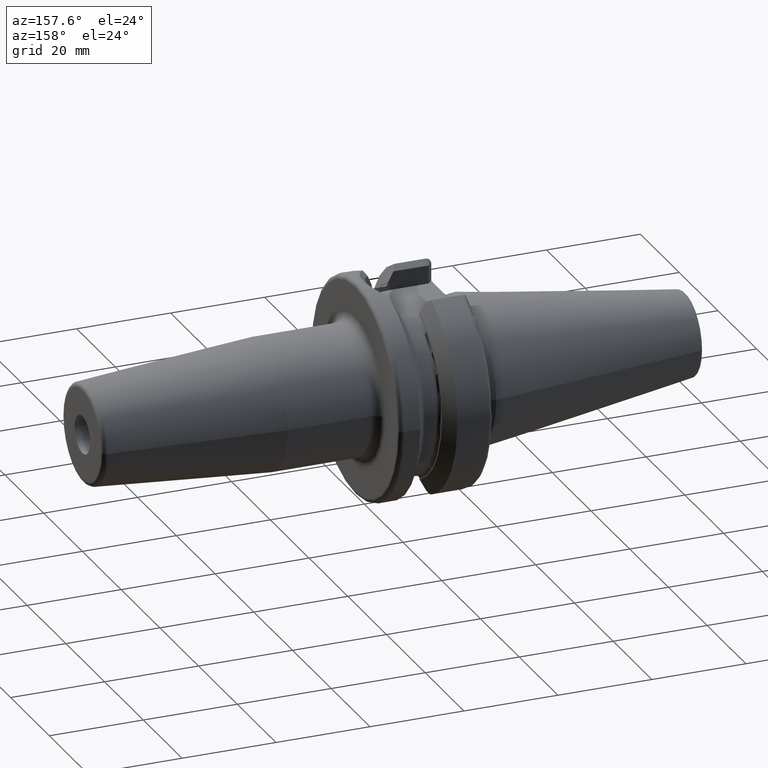
[diagram: clean part render]
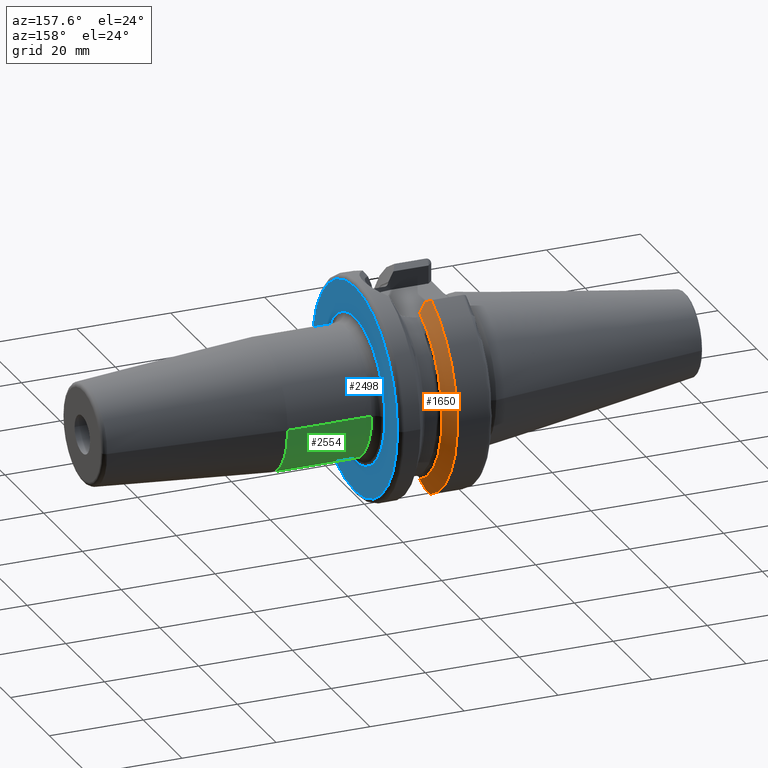
[diagram: same view with three faces highlighted in distinct colors, each labeled with its STEP entity id]
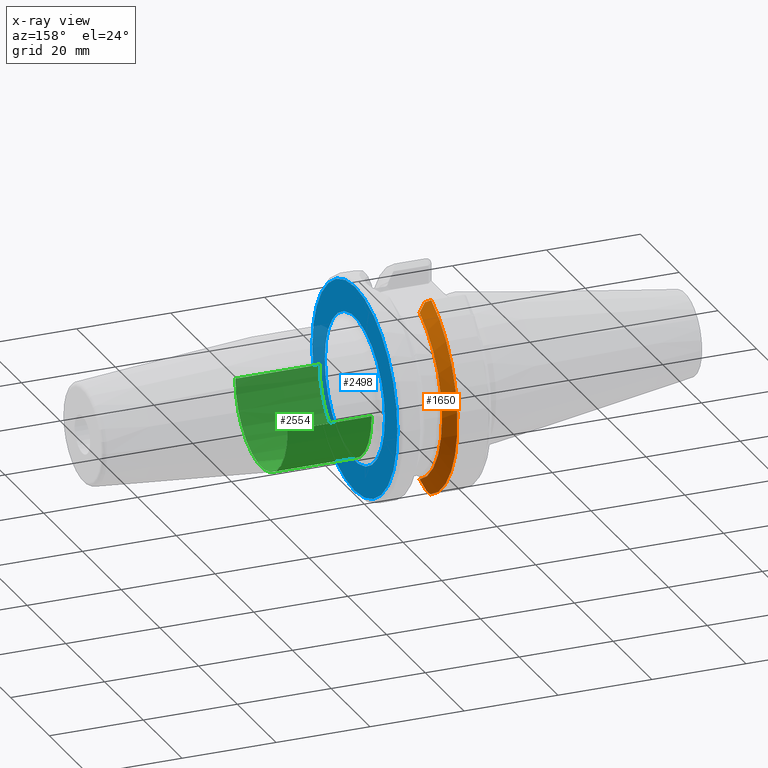
[diagram: x-ray of the same camera — body ghosted, the three highlighted faces saturated]
A machine part, auxiliary view with three faces highlighted in distinct colors.
The next image is the same camera in x-ray (body ghosted, the three faces saturated) — at least one of them is partly hidden behind the body in this view.
Their STEP definitions:

[orange] entity #1650 — the highlighted conical surface has half-angle 60 deg.
#151=CARTESIAN_POINT('',(1.017720370416E1,8.095E0,-2.054091629899E1));
#152=CARTESIAN_POINT('',(1.034592736338E1,8.095E0,-2.022680358126E1));
#153=CARTESIAN_POINT('',(1.067763645400E1,8.095E0,-1.960732394870E1));
#154=CARTESIAN_POINT('',(1.099781107595E1,8.095E0,-1.900530454573E1));
#155=CARTESIAN_POINT('',(1.1155E1,8.095E0,-1.870865212813E1));
#180=CARTESIAN_POINT('',(1.15625E1,0.E0,0.E0));
#181=DIRECTION('',(1.E0,0.E0,0.E0));
#182=DIRECTION('',(0.E0,4.108295537893E-1,-9.117121682490E-1));
#183=AXIS2_PLACEMENT_3D('',#180,#181,#182);
#217=CARTESIAN_POINT('',(9.650924158743E0,0.E0,0.E0));
#218=DIRECTION('',(1.E0,0.E0,0.E0));
#219=DIRECTION('',(0.E0,3.921232146517E-1,-9.199127048428E-1));
#220=AXIS2_PLACEMENT_3D('',#217,#218,#219);
#355=CARTESIAN_POINT('',(1.1155E1,8.095E0,-1.870865212813E1));
#356=CARTESIAN_POINT('',(1.122320683725E1,8.095E0,-1.857992980697E1));
#357=CARTESIAN_POINT('',(1.135933197530E1,8.093276167010E0,-1.832335661175E1));
#358=CARTESIAN_POINT('',(1.149487499855E1,8.088145321664E0,-1.806856911534E1));
#359=CARTESIAN_POINT('',(1.15625E1,8.084736776791E0,-1.794163255419E1));
#486=CARTESIAN_POINT('',(1.15625E1,8.084736776791E0,1.794163255419E1));
#487=CARTESIAN_POINT('',(1.149487499855E1,8.088145321664E0,1.806856911534E1));
#488=CARTESIAN_POINT('',(1.135933197530E1,8.093276167010E0,1.832335661175E1));
#489=CARTESIAN_POINT('',(1.122320683725E1,8.095E0,1.857992980697E1));
#490=CARTESIAN_POINT('',(1.1155E1,8.095E0,1.870865212813E1));
#628=CARTESIAN_POINT('',(1.017720370416E1,8.095E0,-2.054091629899E1));
#629=CARTESIAN_POINT('',(1.009208951352E1,8.245211924620E0,-2.064017608894E1));
#630=CARTESIAN_POINT('',(9.919262419200E0,8.548742773241E0,-2.084074876887E1));
#631=CARTESIAN_POINT('',(9.741236534800E0,8.858487080959E0,-2.104542729224E1));
#632=CARTESIAN_POINT('',(9.650924158743E0,9.014912704843E0,-2.114879308434E1));
#638=CARTESIAN_POINT('',(9.650924158743E0,9.508597089586E0,2.093147585308E1));
#639=CARTESIAN_POINT('',(9.791123521794E0,9.265764669593E0,2.077507399605E1));
#640=CARTESIAN_POINT('',(1.006550207100E1,8.787334100376E0,2.046692968203E1));
#641=CARTESIAN_POINT('',(1.032782868581E1,8.323367334132E0,2.016810111606E1));
#642=CARTESIAN_POINT('',(1.045597922678E1,8.095E0,2.002101583337E1));
#648=CARTESIAN_POINT('',(1.1155E1,8.095E0,1.870865212813E1));
#649=CARTESIAN_POINT('',(1.104157295667E1,8.095E0,1.892271559875E1));
#650=CARTESIAN_POINT('',(1.081163556423E1,8.095E0,1.935550271354E1));
#651=CARTESIAN_POINT('',(1.057555222538E1,8.095E0,1.979762107014E1));
#652=CARTESIAN_POINT('',(1.045597922678E1,8.095E0,2.002101583337E1));
#1204=CARTESIAN_POINT('',(1.15625E1,8.084736776791E0,-1.794163255419E1));
#1205=CARTESIAN_POINT('',(1.15625E1,8.084736776791E0,1.794163255419E1));
#1206=VERTEX_POINT('',#1204);
#1207=VERTEX_POINT('',#1205);
#1310=VERTEX_POINT('',#648);
#1311=VERTEX_POINT('',#652);
#1316=VERTEX_POINT('',#151);
#1317=VERTEX_POINT('',#155);
#1326=CARTESIAN_POINT('',(9.650924158743E0,9.014912704843E0,-2.114879308434E1));
#1327=CARTESIAN_POINT('',(9.650924158743E0,9.508597089586E0,2.093147585308E1));
#1328=VERTEX_POINT('',#1326);
#1329=VERTEX_POINT('',#1327);
#1628=CARTESIAN_POINT('',(1.060671207937E1,0.E0,0.E0));
#1629=DIRECTION('',(-1.E0,0.E0,0.E0));
#1630=DIRECTION('',(0.E0,1.E0,0.E0));
#1631=AXIS2_PLACEMENT_3D('',#1628,#1629,#1630);
#1632=CONICAL_SURFACE('',#1631,2.133452676021E1,6.E1);
#1634=ORIENTED_EDGE('',*,*,#1633,.F.);
#1636=ORIENTED_EDGE('',*,*,#1635,.F.);
#1637=ORIENTED_EDGE('',*,*,#1614,.T.);
#1639=ORIENTED_EDGE('',*,*,#1638,.T.);
#1641=ORIENTED_EDGE('',*,*,#1640,.T.);
#1643=ORIENTED_EDGE('',*,*,#1642,.T.);
#1645=ORIENTED_EDGE('',*,*,#1644,.T.);
#1647=ORIENTED_EDGE('',*,*,#1646,.F.);
#1648=EDGE_LOOP('',(#1634,#1636,#1637,#1639,#1641,#1643,#1645,#1647));
#1649=FACE_OUTER_BOUND('',#1648,.F.);
#1650=ADVANCED_FACE('',(#1649),#1632,.T.);
#156=B_SPLINE_CURVE_WITH_KNOTS('',3,(#151,#152,#153,#154,#155),.UNSPECIFIED.,
.F.,.F.,(4,1,4),(0.E0,5.E-1,1.E0),.UNSPECIFIED.);
#184=CIRCLE('',#183,1.967905352042E1);
#221=CIRCLE('',#220,2.299E1);
#360=B_SPLINE_CURVE_WITH_KNOTS('',3,(#355,#356,#357,#358,#359),.UNSPECIFIED.,
.F.,.F.,(4,1,4),(0.E0,5.E-1,1.E0),.UNSPECIFIED.);
#491=B_SPLINE_CURVE_WITH_KNOTS('',3,(#486,#487,#488,#489,#490),.UNSPECIFIED.,
.F.,.F.,(4,1,4),(0.E0,5.E-1,1.E0),.UNSPECIFIED.);
#633=B_SPLINE_CURVE_WITH_KNOTS('',3,(#628,#629,#630,#631,#632),.UNSPECIFIED.,
.F.,.F.,(4,1,4),(0.E0,5.E-1,1.E0),.UNSPECIFIED.);
#643=B_SPLINE_CURVE_WITH_KNOTS('',3,(#638,#639,#640,#641,#642),.UNSPECIFIED.,
.F.,.F.,(4,1,4),(0.E0,5.E-1,1.E0),.UNSPECIFIED.);
#653=B_SPLINE_CURVE_WITH_KNOTS('',3,(#648,#649,#650,#651,#652),.UNSPECIFIED.,
.F.,.F.,(4,1,4),(0.E0,5.E-1,1.E0),.UNSPECIFIED.);
#1614=EDGE_CURVE('',#1316,#1317,#156,.T.);
#1633=EDGE_CURVE('',#1328,#1329,#221,.T.);
#1635=EDGE_CURVE('',#1316,#1328,#633,.T.);
#1638=EDGE_CURVE('',#1317,#1206,#360,.T.);
#1640=EDGE_CURVE('',#1206,#1207,#184,.T.);
#1642=EDGE_CURVE('',#1207,#1310,#491,.T.);
#1644=EDGE_CURVE('',#1310,#1311,#653,.T.);
#1646=EDGE_CURVE('',#1329,#1311,#643,.T.);

[blue] entity #2498 — the highlighted planar face has unit normal (1, 0, 0).
#802=CARTESIAN_POINT('',(2.2E1,0.E0,0.E0));
#803=DIRECTION('',(1.E0,0.E0,0.E0));
#804=DIRECTION('',(0.E0,1.E0,0.E0));
#805=AXIS2_PLACEMENT_3D('',#802,#803,#804);
#817=CARTESIAN_POINT('',(2.2E1,0.E0,0.E0));
#818=DIRECTION('',(-1.E0,0.E0,0.E0));
#819=DIRECTION('',(0.E0,1.E0,0.E0));
#820=AXIS2_PLACEMENT_3D('',#817,#818,#819);
#822=CARTESIAN_POINT('',(2.2E1,0.E0,0.E0));
#823=DIRECTION('',(1.E0,0.E0,0.E0));
#824=DIRECTION('',(0.E0,-1.E0,0.E0));
#825=AXIS2_PLACEMENT_3D('',#822,#823,#824);
#827=CARTESIAN_POINT('',(2.2E1,0.E0,0.E0));
#828=DIRECTION('',(1.E0,0.E0,0.E0));
#829=DIRECTION('',(0.E0,1.E0,0.E0));
#830=AXIS2_PLACEMENT_3D('',#827,#828,#829);
#1290=CARTESIAN_POINT('',(2.2E1,2.199E1,0.E0));
#1291=VERTEX_POINT('',#1290);
#1292=CARTESIAN_POINT('',(2.2E1,-2.199E1,0.E0));
#1293=VERTEX_POINT('',#1292);
#1387=CARTESIAN_POINT('',(2.2E1,-1.55E1,0.E0));
#1388=CARTESIAN_POINT('',(2.2E1,1.55E1,-1.186856296667E-14));
#1389=VERTEX_POINT('',#1387);
#1390=VERTEX_POINT('',#1388);
#2483=CARTESIAN_POINT('',(2.2E1,0.E0,0.E0));
#2484=DIRECTION('',(1.E0,0.E0,0.E0));
#2485=DIRECTION('',(0.E0,-1.E0,0.E0));
#2486=AXIS2_PLACEMENT_3D('',#2483,#2484,#2485);
#2487=PLANE('',#2486);
#2488=ORIENTED_EDGE('',*,*,#2478,.T.);
#2489=ORIENTED_EDGE('',*,*,#2462,.F.);
#2490=EDGE_LOOP('',(#2488,#2489));
#2491=FACE_OUTER_BOUND('',#2490,.F.);
#2493=ORIENTED_EDGE('',*,*,#2492,.T.);
#2495=ORIENTED_EDGE('',*,*,#2494,.T.);
#2496=EDGE_LOOP('',(#2493,#2495));
#2497=FACE_BOUND('',#2496,.F.);
#2498=ADVANCED_FACE('',(#2491,#2497),#2487,.T.);
#806=CIRCLE('',#805,2.199E1);
#821=CIRCLE('',#820,2.199E1);
#826=CIRCLE('',#825,1.55E1);
#831=CIRCLE('',#830,1.55E1);
#2462=EDGE_CURVE('',#1291,#1293,#806,.T.);
#2478=EDGE_CURVE('',#1291,#1293,#821,.T.);
#2492=EDGE_CURVE('',#1389,#1390,#826,.T.);
#2494=EDGE_CURVE('',#1390,#1389,#831,.T.);

[green] entity #2554 — the highlighted cylindrical surface (partial cylindrical patch) has radius 13.5 mm, axis along (1, 0, 0).
#852=CARTESIAN_POINT('',(2.4E1,0.E0,0.E0));
#853=DIRECTION('',(1.E0,0.E0,0.E0));
#854=DIRECTION('',(0.E0,-1.E0,0.E0));
#855=AXIS2_PLACEMENT_3D('',#852,#853,#854);
#857=DIRECTION('',(-1.E0,0.E0,-2.805619902258E-13));
#858=VECTOR('',#857,1.788138579148E1);
#859=CARTESIAN_POINT('',(4.188138579148E1,-1.35E1,0.E0));
#860=LINE('',#859,#858);
#861=CARTESIAN_POINT('',(4.188138579148E1,0.E0,0.E0));
#862=DIRECTION('',(-1.E0,0.E0,0.E0));
#863=DIRECTION('',(0.E0,1.E0,0.E0));
#864=AXIS2_PLACEMENT_3D('',#861,#862,#863);
#866=DIRECTION('',(-1.E0,0.E0,2.807069019679E-13));
#867=VECTOR('',#866,1.788138579148E1);
#868=CARTESIAN_POINT('',(4.188138579148E1,1.35E1,0.E0));
#869=LINE('',#868,#867);
#1383=CARTESIAN_POINT('',(4.188138579148E1,1.35E1,0.E0));
#1384=CARTESIAN_POINT('',(4.188138579148E1,-1.35E1,0.E0));
#1385=VERTEX_POINT('',#1383);
#1386=VERTEX_POINT('',#1384);
#1391=CARTESIAN_POINT('',(2.4E1,-1.35E1,0.E0));
#1392=CARTESIAN_POINT('',(2.4E1,1.35E1,0.E0));
#1393=VERTEX_POINT('',#1391);
#1394=VERTEX_POINT('',#1392);
#2542=CARTESIAN_POINT('',(1.91E1,0.E0,0.E0));
#2543=DIRECTION('',(1.E0,0.E0,0.E0));
#2544=DIRECTION('',(0.E0,-1.E0,0.E0));
#2545=AXIS2_PLACEMENT_3D('',#2542,#2543,#2544);
#2546=CYLINDRICAL_SURFACE('',#2545,1.35E1);
#2547=ORIENTED_EDGE('',*,*,#2507,.F.);
#2548=ORIENTED_EDGE('',*,*,#2537,.F.);
#2550=ORIENTED_EDGE('',*,*,#2549,.F.);
#2551=ORIENTED_EDGE('',*,*,#2533,.T.);
#2552=EDGE_LOOP('',(#2547,#2548,#2550,#2551));
#2553=FACE_OUTER_BOUND('',#2552,.F.);
#2554=ADVANCED_FACE('',(#2553),#2546,.T.);
#856=CIRCLE('',#855,1.35E1);
#865=CIRCLE('',#864,1.35E1);
#2507=EDGE_CURVE('',#1393,#1394,#856,.T.);
#2533=EDGE_CURVE('',#1385,#1394,#869,.T.);
#2537=EDGE_CURVE('',#1386,#1393,#860,.T.);
#2549=EDGE_CURVE('',#1385,#1386,#865,.T.);